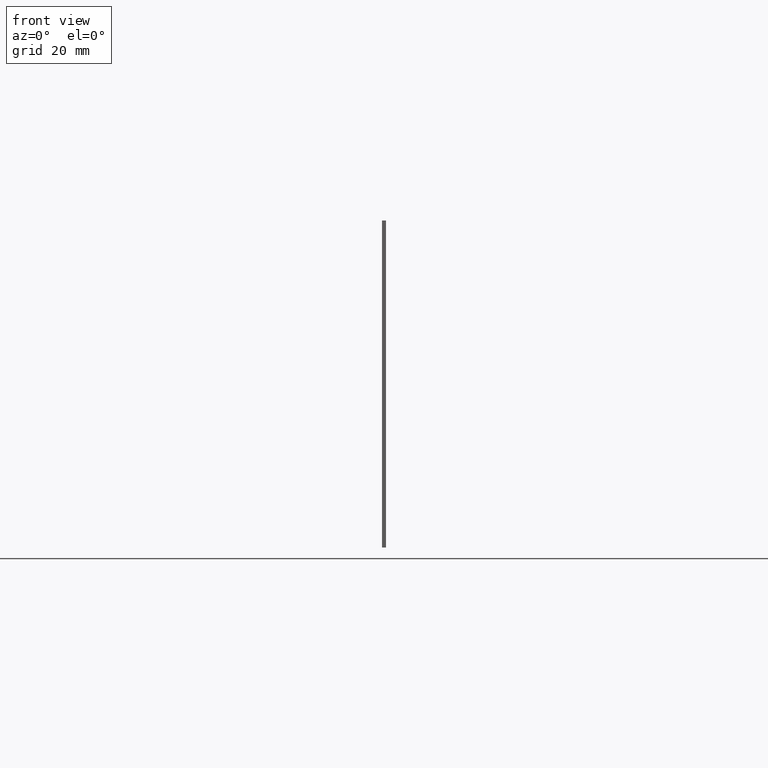
[diagram: clean part render]
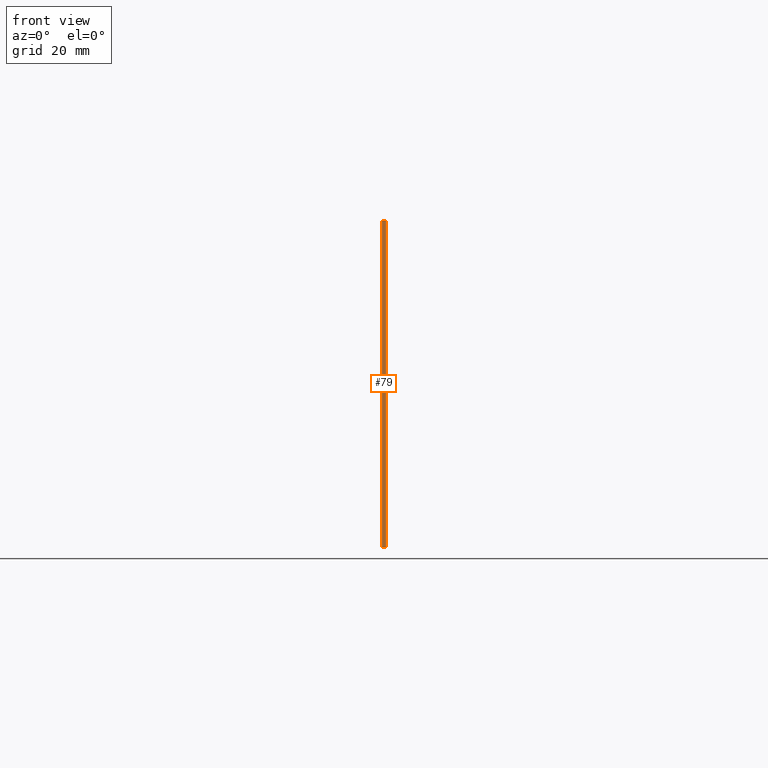
[diagram: same view with one face highlighted and labeled with its STEP entity id]
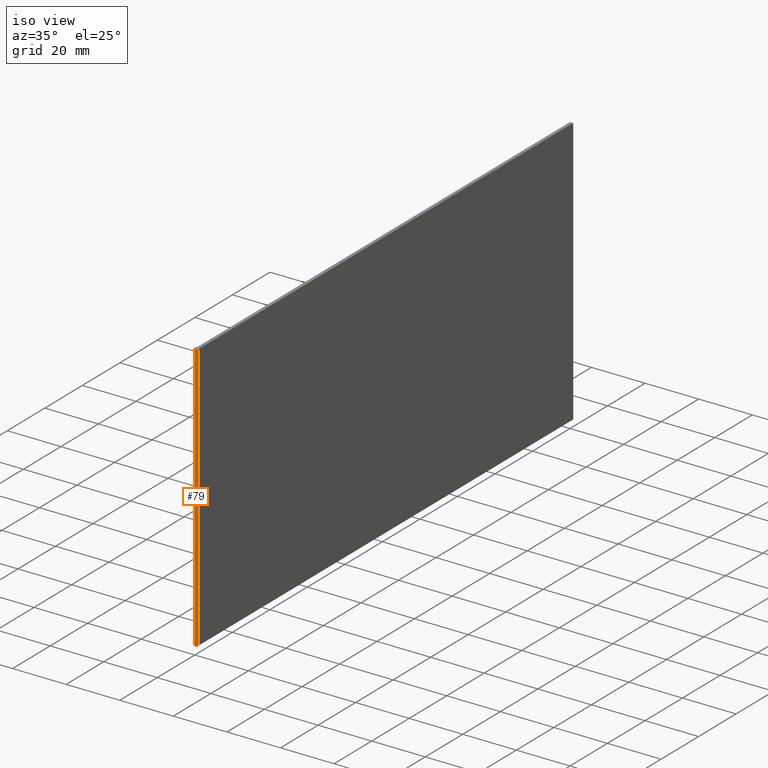
[diagram: same view with one face highlighted and labeled with its STEP entity id]
A machine part, front view. The second image highlights one B-rep face of the part: STEP entity #79.
A second angle (iso view) of the same face is appended — the face is thin or edge-on in the first view.
In plain terms, the highlighted face is a freeform B-spline surface patch.
Its self-contained STEP definition (entity closure, byte-faithful):
#44=CARTESIAN_POINT('',(-0.059939997674170,0.0,104.994999806180600));
#45=CARTESIAN_POINT('',(1.259940029860730,0.0,104.994999806180600));
#46=CARTESIAN_POINT('',(-0.059939997674170,0.0,-4.995002488389611));
#47=CARTESIAN_POINT('',(1.259940029860730,0.0,-4.995002488389611));
#48=B_SPLINE_SURFACE_WITH_KNOTS('',1,1,((#44,#46),(#45,#47)),.UNSPECIFIED.,.F.,.F.,.U.,(2,2),(2,2),(0.041708334948495,0.958291687403247),(0.0,109.990002294570200),.UNSPECIFIED.);
#49=CARTESIAN_POINT('',(1.200000000000052,0.0,100.0));
#50=VERTEX_POINT('',#49);
#51=CARTESIAN_POINT('',(0.0,0.0,100.0));
#52=VERTEX_POINT('',#51);
#53=CARTESIAN_POINT('',(1.200000000000052,0.0,100.0));
#54=CARTESIAN_POINT('',(0.0,0.0,100.0));
#55=QUASI_UNIFORM_CURVE('',1,(#53,#54),.UNSPECIFIED.,.F.,.U.);
#56=EDGE_CURVE('',#50,#52,#55,.T.);
#57=ORIENTED_EDGE('',*,*,#56,.T.);
#58=CARTESIAN_POINT('',(0.0,0.0,0.0));
#59=VERTEX_POINT('',#58);
#60=CARTESIAN_POINT('',(0.0,0.0,100.0));
#61=CARTESIAN_POINT('',(0.0,0.0,0.0));
#62=QUASI_UNIFORM_CURVE('',1,(#60,#61),.UNSPECIFIED.,.F.,.U.);
#63=EDGE_CURVE('',#52,#59,#62,.T.);
#64=ORIENTED_EDGE('',*,*,#63,.T.);
#65=CARTESIAN_POINT('',(1.200000000000052,0.0,0.0));
#66=VERTEX_POINT('',#65);
#67=CARTESIAN_POINT('',(0.0,0.0,0.0));
#68=CARTESIAN_POINT('',(1.200000000000052,0.0,0.0));
#69=QUASI_UNIFORM_CURVE('',1,(#67,#68),.UNSPECIFIED.,.F.,.U.);
#70=EDGE_CURVE('',#59,#66,#69,.T.);
#71=ORIENTED_EDGE('',*,*,#70,.T.);
#72=CARTESIAN_POINT('',(1.200000000000052,0.0,0.0));
#73=CARTESIAN_POINT('',(1.200000000000052,0.0,100.0));
#74=QUASI_UNIFORM_CURVE('',1,(#72,#73),.UNSPECIFIED.,.F.,.U.);
#75=EDGE_CURVE('',#66,#50,#74,.T.);
#76=ORIENTED_EDGE('',*,*,#75,.T.);
#77=EDGE_LOOP('',(#57,#64,#71,#76));
#78=FACE_OUTER_BOUND('',#77,.T.);
#79=ADVANCED_FACE('',(#78),#48,.F.);